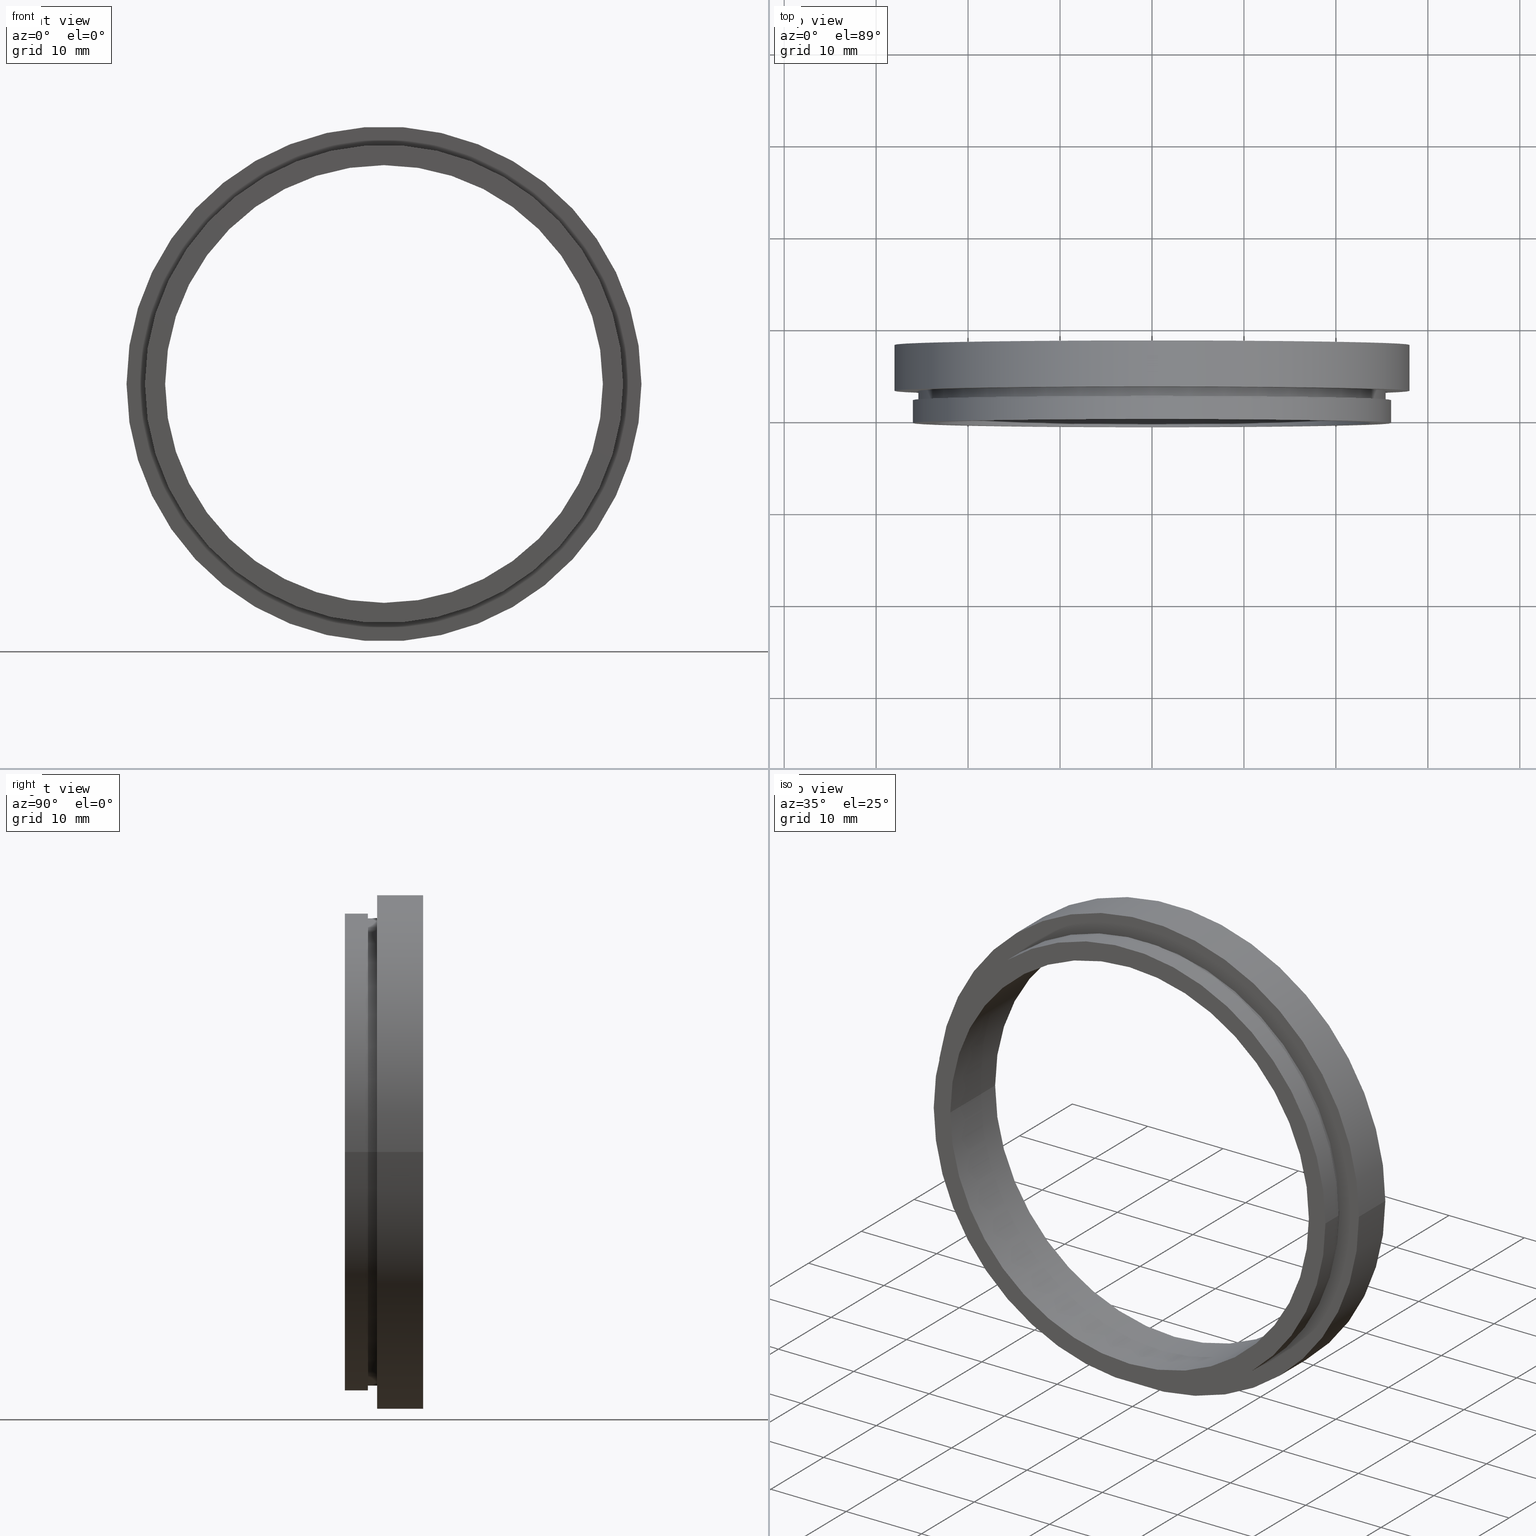
[diagram: canonical four-view strip — front | top / right | iso, engineering-drawing reading convention]
A machine part, canonical four-view strip (front | top / right | iso — engineering-drawing reading convention). The complete STEP part file that produces these views, byte-faithful:
ISO-10303-21;
HEADER;
FILE_DESCRIPTION (( 'STEP AP214' ),
    '1' );
FILE_NAME ('504093.STEP',
    '2019-10-09T01:35:31',
    ( '' ),
    ( '' ),
    'SwSTEP 2.0',
    'SolidWorks 2016',
    '' );
FILE_SCHEMA (( 'AUTOMOTIVE_DESIGN' ));
ENDSEC;

DATA;
#1 = DIRECTION ( 'NONE',  ( -1.000000000000000000, -1.167602339599774200E-016, 0.0000000000000000000 ) ) ;
#2 = CYLINDRICAL_SURFACE ( 'NONE', #31, 25.99999999999999600 ) ;
#3 = PRODUCT_DEFINITION_SHAPE ( 'NONE', 'NONE',  #267 ) ;
#4 = EDGE_CURVE ( 'NONE', #302, #423, #382, .T. ) ;
#5 = APPLICATION_CONTEXT ( 'automotive_design' ) ;
#6 =( NAMED_UNIT ( * ) PLANE_ANGLE_UNIT ( ) SI_UNIT ( $, .RADIAN. ) );
#7 = UNCERTAINTY_MEASURE_WITH_UNIT (LENGTH_MEASURE( 1.000000000000000100E-005 ), #371, 'distance_accuracy_value', 'NONE');
#8 = ORIENTED_EDGE ( 'NONE', *, *, #107, .T. ) ;
#9 = ORIENTED_EDGE ( 'NONE', *, *, #33, .T. ) ;
#10 =( NAMED_UNIT ( * ) PLANE_ANGLE_UNIT ( ) SI_UNIT ( $, .RADIAN. ) );
#11 = CARTESIAN_POINT ( 'NONE',  ( -28.00000000000000700, 2.954535588880331100, 0.0000000000000000000 ) ) ;
#12 =( NAMED_UNIT ( * ) SI_UNIT ( $, .STERADIAN. ) SOLID_ANGLE_UNIT ( ) );
#13 = CYLINDRICAL_SURFACE ( 'NONE', #82, 28.00000000000000400 ) ;
#14 =( LENGTH_UNIT ( ) NAMED_UNIT ( * ) SI_UNIT ( .MILLI., .METRE. ) );
#15 = EDGE_LOOP ( 'NONE', ( #321, #150, #397, #377 ) ) ;
#16 =( GEOMETRIC_REPRESENTATION_CONTEXT ( 3 ) GLOBAL_UNCERTAINTY_ASSIGNED_CONTEXT ( ( #7 ) ) GLOBAL_UNIT_ASSIGNED_CONTEXT ( ( #371, #374, #12 ) ) REPRESENTATION_CONTEXT ( 'NONE', 'WORKASPACE' ) );
#17 = DIRECTION ( 'NONE',  ( 0.0000000000000000000, 0.0000000000000000000, 1.000000000000000000 ) ) ;
#18 = CIRCLE ( 'NONE', #228, 23.79999999999999700 ) ;
#19 = CARTESIAN_POINT ( 'NONE',  ( 26.00000000000000000, -0.5454644111196653700, 3.184081677783117800E-015 ) ) ;
#20 = CARTESIAN_POINT ( 'NONE',  ( -25.39999999999999900, 2.954535588880331500, 0.0000000000000000000 ) ) ;
#21 = AXIS2_PLACEMENT_3D ( 'NONE', #89, #355, #155 ) ;
#22 = ORIENTED_EDGE ( 'NONE', *, *, #142, .T. ) ;
#23 = CARTESIAN_POINT ( 'NONE',  ( 2.134740942951285500E-015, -0.5454644111196684800, 0.0000000000000000000 ) ) ;
#24 = MECHANICAL_DESIGN_GEOMETRIC_PRESENTATION_REPRESENTATION (  '', ( #238 ), #121 ) ;
#25 = FACE_OUTER_BOUND ( 'NONE', #312, .T. ) ;
#26 = DIRECTION ( 'NONE',  ( -1.224646799147351000E-016, 1.000000000000000000, -0.0000000000000000000 ) ) ;
#27 = DIRECTION ( 'NONE',  ( -1.224646799147351000E-016, 1.000000000000000000, -0.0000000000000000000 ) ) ;
#28 = CIRCLE ( 'NONE', #203, 28.00000000000000000 ) ;
#29 = CARTESIAN_POINT ( 'NONE',  ( 25.39999999999999900, 16.88601823708208000, 3.110602869834276900E-015 ) ) ;
#30 = ORIENTED_EDGE ( 'NONE', *, *, #354, .T. ) ;
#31 = AXIS2_PLACEMENT_3D ( 'NONE', #425, #353, #258 ) ;
#32 = DIRECTION ( 'NONE',  ( -1.224646799147351000E-016, 1.000000000000000000, -0.0000000000000000000 ) ) ;
#33 = EDGE_CURVE ( 'NONE', #429, #118, #18, .T. ) ;
#34 = CIRCLE ( 'NONE', #422, 25.99999999999999600 ) ;
#35 = FILL_AREA_STYLE ('',( #409 ) ) ;
#36 = COLOUR_RGB ( '',1.000000000000000000, 1.000000000000000000, 1.000000000000000000 ) ;
#37 = DIRECTION ( 'NONE',  ( -1.000000000000000000, -1.365923996832131600E-016, 0.0000000000000000000 ) ) ;
#38 = SURFACE_SIDE_STYLE ('',( #256 ) ) ;
#39 =( LENGTH_UNIT ( ) NAMED_UNIT ( * ) SI_UNIT ( .MILLI., .METRE. ) );
#40 = STYLED_ITEM ( 'NONE', ( #288 ), #346 ) ;
#41 =( NAMED_UNIT ( * ) SI_UNIT ( $, .STERADIAN. ) SOLID_ANGLE_UNIT ( ) );
#42 = DIRECTION ( 'NONE',  ( 1.000000000000000000, 0.0000000000000000000, 0.0000000000000000000 ) ) ;
#43 = EDGE_LOOP ( 'NONE', ( #424, #182, #244, #254 ) ) ;
#44 = EDGE_LOOP ( 'NONE', ( #226, #394, #47, #357 ) ) ;
#45 = AXIS2_PLACEMENT_3D ( 'NONE', #392, #26, #290 ) ;
#46 = MECHANICAL_DESIGN_GEOMETRIC_PRESENTATION_REPRESENTATION (  '', ( #138 ), #57 ) ;
#47 = ORIENTED_EDGE ( 'NONE', *, *, #390, .T. ) ;
#48 = FILL_AREA_STYLE_COLOUR ( '', #359 ) ;
#49 = VERTEX_POINT ( 'NONE', #201 ) ;
#50 = VECTOR ( 'NONE', #189, 1000.000000000000000 ) ;
#51 = EDGE_CURVE ( 'NONE', #213, #140, #34, .T. ) ;
#52 =( NAMED_UNIT ( * ) PLANE_ANGLE_UNIT ( ) SI_UNIT ( $, .RADIAN. ) );
#53 = SURFACE_SIDE_STYLE ('',( #113 ) ) ;
#54 = FACE_OUTER_BOUND ( 'NONE', #165, .T. ) ;
#55 = EDGE_LOOP ( 'NONE', ( #368, #177 ) ) ;
#56 = UNCERTAINTY_MEASURE_WITH_UNIT (LENGTH_MEASURE( 1.000000000000000100E-005 ), #14, 'distance_accuracy_value', 'NONE');
#57 =( GEOMETRIC_REPRESENTATION_CONTEXT ( 3 ) GLOBAL_UNCERTAINTY_ASSIGNED_CONTEXT ( ( #404 ) ) GLOBAL_UNIT_ASSIGNED_CONTEXT ( ( #171, #131, #248 ) ) REPRESENTATION_CONTEXT ( 'NONE', 'WORKASPACE' ) );
#58 = DIRECTION ( 'NONE',  ( -1.000000000000000000, -1.229977254500362400E-016, 0.0000000000000000000 ) ) ;
#59 = ORIENTED_EDGE ( 'NONE', *, *, #4, .F. ) ;
#60 = ORIENTED_EDGE ( 'NONE', *, *, #390, .F. ) ;
#61 = AXIS2_PLACEMENT_3D ( 'NONE', #166, #403, #37 ) ;
#62 = CARTESIAN_POINT ( 'NONE',  ( 1.828579243164447600E-015, 1.954535588880333700, 0.0000000000000000000 ) ) ;
#63 = CARTESIAN_POINT ( 'NONE',  ( -28.00000000000000000, 7.954535588880330200, 0.0000000000000000000 ) ) ;
#64 = CARTESIAN_POINT ( 'NONE',  ( -25.99999999999999600, 16.88601823708207300, 0.0000000000000000000 ) ) ;
#65 = ORIENTED_EDGE ( 'NONE', *, *, #128, .F. ) ;
#66 = FILL_AREA_STYLE ('',( #405 ) ) ;
#67 = DIRECTION ( 'NONE',  ( -1.000000000000000000, -1.457750820148577400E-016, 0.0000000000000000000 ) ) ;
#68 = EDGE_CURVE ( 'NONE', #265, #302, #280, .T. ) ;
#69 = VECTOR ( 'NONE', #168, 1000.000000000000000 ) ;
#70 = DIRECTION ( 'NONE',  ( -1.224646799147351000E-016, 1.000000000000000000, -0.0000000000000000000 ) ) ;
#71 = ADVANCED_FACE ( 'NONE', ( #237, #434 ), #239, .F. ) ;
#72 = CARTESIAN_POINT ( 'NONE',  ( 23.80000000000000100, 7.954535588880337300, 2.914659381970700800E-015 ) ) ;
#73 = VECTOR ( 'NONE', #125, 1000.000000000000000 ) ;
#74 = AXIS2_PLACEMENT_3D ( 'NONE', #236, #32, #296 ) ;
#75 = ADVANCED_FACE ( 'NONE', ( #331 ), #307, .T. ) ;
#76 = EDGE_CURVE ( 'NONE', #413, #92, #327, .T. ) ;
#77 = LINE ( 'NONE', #163, #69 ) ;
#78 = ADVANCED_BREP_SHAPE_REPRESENTATION ( '504093', ( #133, #334 ), #249 ) ;
#79 = DIRECTION ( 'NONE',  ( 1.000000000000000000, 1.224646799147351000E-016, 0.0000000000000000000 ) ) ;
#80 = VERTEX_POINT ( 'NONE', #72 ) ;
#81 = SURFACE_STYLE_FILL_AREA ( #183 ) ;
#82 = AXIS2_PLACEMENT_3D ( 'NONE', #99, #303, #95 ) ;
#83 = ORIENTED_EDGE ( 'NONE', *, *, #408, .F. ) ;
#84 = CARTESIAN_POINT ( 'NONE',  ( -23.80000000000000100, 7.954535588880330200, 0.0000000000000000000 ) ) ;
#85 =( NAMED_UNIT ( * ) SI_UNIT ( $, .STERADIAN. ) SOLID_ANGLE_UNIT ( ) );
#86 = PLANE ( 'NONE',  #21 ) ;
#87 = ORIENTED_EDGE ( 'NONE', *, *, #231, .F. ) ;
#88 = CARTESIAN_POINT ( 'NONE',  ( 1.828579243164447600E-015, 1.954535588880333700, 0.0000000000000000000 ) ) ;
#89 = CARTESIAN_POINT ( 'NONE',  ( 23.80000000000000100, -0.5454644111196634800, 0.0000000000000000000 ) ) ;
#90 = DIRECTION ( 'NONE',  ( -1.000000000000000000, -1.365923996832131600E-016, 0.0000000000000000000 ) ) ;
#91 = EDGE_CURVE ( 'NONE', #413, #289, #243, .T. ) ;
#92 = VERTEX_POINT ( 'NONE', #11 ) ;
#93 = FACE_OUTER_BOUND ( 'NONE', #217, .T. ) ;
#94 = EDGE_CURVE ( 'NONE', #336, #213, #122, .T. ) ;
#95 = DIRECTION ( 'NONE',  ( -1.000000000000000000, -1.239088197126290600E-016, 0.0000000000000000000 ) ) ;
#96 = ORIENTED_EDGE ( 'NONE', *, *, #128, .T. ) ;
#97 = EDGE_LOOP ( 'NONE', ( #96, #431 ) ) ;
#98 =( NAMED_UNIT ( * ) SI_UNIT ( $, .STERADIAN. ) SOLID_ANGLE_UNIT ( ) );
#99 = CARTESIAN_POINT ( 'NONE',  ( 0.0000000000000000000, 16.88601823708207700, 0.0000000000000000000 ) ) ;
#100 = DIRECTION ( 'NONE',  ( -1.000000000000000000, -1.334402673828313300E-016, 0.0000000000000000000 ) ) ;
#101 = COLOUR_RGB ( '',1.000000000000000000, 1.000000000000000000, 1.000000000000000000 ) ;
#102 = SURFACE_SIDE_STYLE ('',( #420 ) ) ;
#103 = PRESENTATION_LAYER_ASSIGNMENT (  '', '', ( #40 ) ) ;
#104 = DIRECTION ( 'NONE',  ( -1.224646799147351000E-016, 1.000000000000000000, -0.0000000000000000000 ) ) ;
#105 = ORIENTED_EDGE ( 'NONE', *, *, #91, .T. ) ;
#106 = ADVANCED_FACE ( 'NONE', ( #54 ), #211, .F. ) ;
#107 = EDGE_CURVE ( 'NONE', #118, #429, #386, .T. ) ;
#108 = ADVANCED_FACE ( 'NONE', ( #221 ), #426, .T. ) ;
#109 =( GEOMETRIC_REPRESENTATION_CONTEXT ( 3 ) GLOBAL_UNCERTAINTY_ASSIGNED_CONTEXT ( ( #253 ) ) GLOBAL_UNIT_ASSIGNED_CONTEXT ( ( #235, #10, #98 ) ) REPRESENTATION_CONTEXT ( 'NONE', 'WORKASPACE' ) );
#110 = DIRECTION ( 'NONE',  ( -1.224646799147351000E-016, 1.000000000000000000, -0.0000000000000000000 ) ) ;
#111 = EDGE_CURVE ( 'NONE', #49, #423, #332, .T. ) ;
#112 = EDGE_LOOP ( 'NONE', ( #309, #30 ) ) ;
#113 = SURFACE_STYLE_FILL_AREA ( #229 ) ;
#114 = SURFACE_SIDE_STYLE ('',( #81 ) ) ;
#115 = VECTOR ( 'NONE', #127, 1000.000000000000000 ) ;
#116 = AXIS2_PLACEMENT_3D ( 'NONE', #318, #314, #181 ) ;
#117 = CARTESIAN_POINT ( 'NONE',  ( 23.80000000000000100, -0.5454644111196655900, 2.914659381970700800E-015 ) ) ;
#118 = VERTEX_POINT ( 'NONE', #117 ) ;
#119 = DIRECTION ( 'NONE',  ( -1.000000000000000000, -1.239088197126290600E-016, 0.0000000000000000000 ) ) ;
#120 = FACE_OUTER_BOUND ( 'NONE', #15, .T. ) ;
#121 =( GEOMETRIC_REPRESENTATION_CONTEXT ( 3 ) GLOBAL_UNCERTAINTY_ASSIGNED_CONTEXT ( ( #56 ) ) GLOBAL_UNIT_ASSIGNED_CONTEXT ( ( #14, #6, #246 ) ) REPRESENTATION_CONTEXT ( 'NONE', 'WORKASPACE' ) );
#122 = LINE ( 'NONE', #410, #317 ) ;
#123 = ORIENTED_EDGE ( 'NONE', *, *, #162, .F. ) ;
#124 = MECHANICAL_DESIGN_GEOMETRIC_PRESENTATION_REPRESENTATION (  '', ( #160 ), #16 ) ;
#125 = DIRECTION ( 'NONE',  ( -1.224646799147351000E-016, 1.000000000000000000, -0.0000000000000000000 ) ) ;
#126 = VERTEX_POINT ( 'NONE', #63 ) ;
#127 = DIRECTION ( 'NONE',  ( -1.224646799147351000E-016, 1.000000000000000000, -0.0000000000000000000 ) ) ;
#128 = EDGE_CURVE ( 'NONE', #140, #213, #141, .T. ) ;
#129 = DIRECTION ( 'NONE',  ( -1.000000000000000000, -1.457750820148577400E-016, 0.0000000000000000000 ) ) ;
#130 = CARTESIAN_POINT ( 'NONE',  ( 25.39999999999999900, 2.954535588880337300, 0.0000000000000000000 ) ) ;
#131 =( NAMED_UNIT ( * ) PLANE_ANGLE_UNIT ( ) SI_UNIT ( $, .RADIAN. ) );
#132 = DIRECTION ( 'NONE',  ( -1.224646799147351000E-016, 1.000000000000000000, -0.0000000000000000000 ) ) ;
#133 = MANIFOLD_SOLID_BREP ( '��ת1', #313 ) ;
#134 = CARTESIAN_POINT ( 'NONE',  ( 25.39999999999999900, 2.954535588880337700, 3.110602869834276900E-015 ) ) ;
#135 = CARTESIAN_POINT ( 'NONE',  ( 0.0000000000000000000, 16.88601823708207700, 0.0000000000000000000 ) ) ;
#136 = PRESENTATION_STYLE_ASSIGNMENT (( #401 ) ) ;
#137 = ADVANCED_FACE ( 'NONE', ( #93 ), #180, .T. ) ;
#138 = STYLED_ITEM ( 'NONE', ( #202 ), #75 ) ;
#139 = ORIENTED_EDGE ( 'NONE', *, *, #223, .T. ) ;
#140 = VERTEX_POINT ( 'NONE', #358 ) ;
#141 = CIRCLE ( 'NONE', #259, 25.99999999999999600 ) ;
#142 = EDGE_CURVE ( 'NONE', #265, #49, #427, .T. ) ;
#143 = ADVANCED_FACE ( 'NONE', ( #269, #185 ), #86, .F. ) ;
#144 = CIRCLE ( 'NONE', #330, 28.00000000000000700 ) ;
#145 = VECTOR ( 'NONE', #279, 1000.000000000000000 ) ;
#146 = ORIENTED_EDGE ( 'NONE', *, *, #107, .F. ) ;
#147 = AXIS2_PLACEMENT_3D ( 'NONE', #362, #433, #100 ) ;
#148 = LINE ( 'NONE', #64, #157 ) ;
#149 = EDGE_CURVE ( 'NONE', #212, #80, #263, .T. ) ;
#150 = ORIENTED_EDGE ( 'NONE', *, *, #33, .F. ) ;
#151 = DIRECTION ( 'NONE',  ( -1.000000000000000000, -1.457750820148577400E-016, 0.0000000000000000000 ) ) ;
#152 = PRESENTATION_STYLE_ASSIGNMENT (( #222 ) ) ;
#153 = PRESENTATION_LAYER_ASSIGNMENT (  '', '', ( #160 ) ) ;
#154 = DIRECTION ( 'NONE',  ( -1.224646799147351000E-016, 1.000000000000000000, -0.0000000000000000000 ) ) ;
#155 = DIRECTION ( 'NONE',  ( -1.000000000000000000, -1.224646799147351000E-016, 0.0000000000000000000 ) ) ;
#156 = ORIENTED_EDGE ( 'NONE', *, *, #94, .T. ) ;
#157 = VECTOR ( 'NONE', #206, 1000.000000000000000 ) ;
#158 = DIRECTION ( 'NONE',  ( -1.224646799147351000E-016, 1.000000000000000000, -0.0000000000000000000 ) ) ;
#159 = ORIENTED_EDGE ( 'NONE', *, *, #187, .F. ) ;
#160 = STYLED_ITEM ( 'NONE', ( #406 ), #106 ) ;
#161 = FACE_OUTER_BOUND ( 'NONE', #97, .T. ) ;
#162 = EDGE_CURVE ( 'NONE', #126, #289, #174, .T. ) ;
#163 = CARTESIAN_POINT ( 'NONE',  ( 23.80000000000000100, 16.88601823708208000, 2.914659381970700800E-015 ) ) ;
#164 = CARTESIAN_POINT ( 'NONE',  ( 23.80000000000000100, 7.954535588880337300, 0.0000000000000000000 ) ) ;
#165 = EDGE_LOOP ( 'NONE', ( #146, #417, #139, #285 ) ) ;
#166 = CARTESIAN_POINT ( 'NONE',  ( 0.0000000000000000000, 16.88601823708207700, 0.0000000000000000000 ) ) ;
#167 = SURFACE_STYLE_USAGE ( .BOTH. , #335 ) ;
#168 = DIRECTION ( 'NONE',  ( -1.224646799147351000E-016, 1.000000000000000000, -0.0000000000000000000 ) ) ;
#169 = FILL_AREA_STYLE ('',( #204 ) ) ;
#170 = DIRECTION ( 'NONE',  ( -1.000000000000000000, -1.209302423156908900E-016, 0.0000000000000000000 ) ) ;
#171 =( LENGTH_UNIT ( ) NAMED_UNIT ( * ) SI_UNIT ( .MILLI., .METRE. ) );
#172 = EDGE_CURVE ( 'NONE', #92, #413, #144, .T. ) ;
#173 = ORIENTED_EDGE ( 'NONE', *, *, #223, .F. ) ;
#174 = CIRCLE ( 'NONE', #45, 28.00000000000000000 ) ;
#175 = AXIS2_PLACEMENT_3D ( 'NONE', #23, #388, #387 ) ;
#176 = ORIENTED_EDGE ( 'NONE', *, *, #381, .F. ) ;
#177 = ORIENTED_EDGE ( 'NONE', *, *, #76, .F. ) ;
#178 = DIRECTION ( 'NONE',  ( -1.000000000000000000, -1.457750820148577400E-016, 0.0000000000000000000 ) ) ;
#179 = AXIS2_PLACEMENT_3D ( 'NONE', #286, #419, #79 ) ;
#180 = CYLINDRICAL_SURFACE ( 'NONE', #293, 25.39999999999999900 ) ;
#181 = DIRECTION ( 'NONE',  ( -1.000000000000000000, -1.195183497228115300E-016, 0.0000000000000000000 ) ) ;
#182 = ORIENTED_EDGE ( 'NONE', *, *, #396, .T. ) ;
#183 = FILL_AREA_STYLE ('',( #48 ) ) ;
#184 = MECHANICAL_DESIGN_GEOMETRIC_PRESENTATION_REPRESENTATION (  '', ( #40 ), #109 ) ;
#185 = FACE_BOUND ( 'NONE', #389, .T. ) ;
#186 = PRODUCT_DEFINITION_CONTEXT ( 'detailed design', #378, 'design' ) ;
#187 = EDGE_CURVE ( 'NONE', #208, #336, #350, .T. ) ;
#188 = ORIENTED_EDGE ( 'NONE', *, *, #111, .T. ) ;
#189 = DIRECTION ( 'NONE',  ( -1.224646799147351000E-016, 1.000000000000000000, -0.0000000000000000000 ) ) ;
#190 = ORIENTED_EDGE ( 'NONE', *, *, #381, .T. ) ;
#191 = CARTESIAN_POINT ( 'NONE',  ( 1.093791163676037000E-015, 7.954535588880333700, 0.0000000000000000000 ) ) ;
#192 = PRESENTATION_STYLE_ASSIGNMENT (( #292 ) ) ;
#193 = VECTOR ( 'NONE', #110, 1000.000000000000000 ) ;
#194 = SURFACE_SIDE_STYLE ('',( #380 ) ) ;
#195 = ORIENTED_EDGE ( 'NONE', *, *, #172, .T. ) ;
#196 = AXIS2_PLACEMENT_3D ( 'NONE', #341, #278, #67 ) ;
#197 = DIRECTION ( 'NONE',  ( 1.224646799147351000E-016, -1.000000000000000000, 0.0000000000000000000 ) ) ;
#198 = CIRCLE ( 'NONE', #207, 25.99999999999999600 ) ;
#199 = DIRECTION ( 'NONE',  ( -1.224646799147351000E-016, 1.000000000000000000, -0.0000000000000000000 ) ) ;
#200 = PLANE ( 'NONE',  #272 ) ;
#201 = CARTESIAN_POINT ( 'NONE',  ( 25.39999999999999900, 1.954535588880336600, 3.110602869834276900E-015 ) ) ;
#202 = PRESENTATION_STYLE_ASSIGNMENT (( #407 ) ) ;
#203 = AXIS2_PLACEMENT_3D ( 'NONE', #370, #70, #333 ) ;
#204 = FILL_AREA_STYLE_COLOUR ( '', #284 ) ;
#205 = UNCERTAINTY_MEASURE_WITH_UNIT (LENGTH_MEASURE( 1.000000000000000100E-005 ), #260, 'distance_accuracy_value', 'NONE');
#206 = DIRECTION ( 'NONE',  ( -1.224646799147351000E-016, 1.000000000000000000, -0.0000000000000000000 ) ) ;
#207 = AXIS2_PLACEMENT_3D ( 'NONE', #399, #373, #170 ) ;
#208 = VERTEX_POINT ( 'NONE', #257 ) ;
#209 = DIRECTION ( 'NONE',  ( -1.224646799147351000E-016, 1.000000000000000000, -0.0000000000000000000 ) ) ;
#210 = ADVANCED_FACE ( 'NONE', ( #241 ), #2, .T. ) ;
#211 = CYLINDRICAL_SURFACE ( 'NONE', #196, 23.80000000000000100 ) ;
#212 = VERTEX_POINT ( 'NONE', #84 ) ;
#213 = VERTEX_POINT ( 'NONE', #385 ) ;
#214 = FILL_AREA_STYLE_COLOUR ( '', #101 ) ;
#215 = CIRCLE ( 'NONE', #352, 23.80000000000000100 ) ;
#216 = CARTESIAN_POINT ( 'NONE',  ( -23.80000000000000100, 16.88601823708207300, 0.0000000000000000000 ) ) ;
#217 = EDGE_LOOP ( 'NONE', ( #22, #188, #59, #351 ) ) ;
#218 = PLANE ( 'NONE',  #179 ) ;
#219 = SHAPE_DEFINITION_REPRESENTATION ( #3, #78 ) ;
#220 = AXIS2_PLACEMENT_3D ( 'NONE', #88, #233, #325 ) ;
#221 = FACE_OUTER_BOUND ( 'NONE', #295, .T. ) ;
#222 = SURFACE_STYLE_USAGE ( .BOTH. , #114 ) ;
#223 = EDGE_CURVE ( 'NONE', #80, #212, #215, .T. ) ;
#224 =( LENGTH_UNIT ( ) NAMED_UNIT ( * ) SI_UNIT ( .MILLI., .METRE. ) );
#225 = ORIENTED_EDGE ( 'NONE', *, *, #187, .T. ) ;
#226 = ORIENTED_EDGE ( 'NONE', *, *, #91, .F. ) ;
#227 = CARTESIAN_POINT ( 'NONE',  ( 1.828579243164447600E-015, 1.954535588880333700, 0.0000000000000000000 ) ) ;
#228 = AXIS2_PLACEMENT_3D ( 'NONE', #365, #199, #400 ) ;
#229 = FILL_AREA_STYLE ('',( #430 ) ) ;
#230 = CYLINDRICAL_SURFACE ( 'NONE', #360, 23.80000000000000100 ) ;
#231 = EDGE_CURVE ( 'NONE', #423, #302, #347, .T. ) ;
#232 = COLOUR_RGB ( '',1.000000000000000000, 1.000000000000000000, 1.000000000000000000 ) ;
#233 = DIRECTION ( 'NONE',  ( -1.224646799147351000E-016, 1.000000000000000000, -0.0000000000000000000 ) ) ;
#234 = SURFACE_STYLE_USAGE ( .BOTH. , #194 ) ;
#235 =( LENGTH_UNIT ( ) NAMED_UNIT ( * ) SI_UNIT ( .MILLI., .METRE. ) );
#236 = CARTESIAN_POINT ( 'NONE',  ( 1.706114563249712100E-015, 2.954535588880334600, 0.0000000000000000000 ) ) ;
#237 = FACE_BOUND ( 'NONE', #329, .T. ) ;
#238 = STYLED_ITEM ( 'NONE', ( #136 ), #78 ) ;
#239 = PLANE ( 'NONE',  #252 ) ;
#240 = CARTESIAN_POINT ( 'NONE',  ( -23.79999999999999400, -0.5454644111196714800, 0.0000000000000000000 ) ) ;
#241 = FACE_OUTER_BOUND ( 'NONE', #43, .T. ) ;
#242 = CARTESIAN_POINT ( 'NONE',  ( 2.134740942951285500E-015, -0.5454644111196684800, 0.0000000000000000000 ) ) ;
#243 = LINE ( 'NONE', #338, #145 ) ;
#244 = ORIENTED_EDGE ( 'NONE', *, *, #408, .T. ) ;
#245 = CARTESIAN_POINT ( 'NONE',  ( 1.706114563249712100E-015, 2.954535588880334600, 0.0000000000000000000 ) ) ;
#246 =( NAMED_UNIT ( * ) SI_UNIT ( $, .STERADIAN. ) SOLID_ANGLE_UNIT ( ) );
#247 = ADVANCED_FACE ( 'NONE', ( #251, #161 ), #218, .F. ) ;
#248 =( NAMED_UNIT ( * ) SI_UNIT ( $, .STERADIAN. ) SOLID_ANGLE_UNIT ( ) );
#249 =( GEOMETRIC_REPRESENTATION_CONTEXT ( 3 ) GLOBAL_UNCERTAINTY_ASSIGNED_CONTEXT ( ( #264 ) ) GLOBAL_UNIT_ASSIGNED_CONTEXT ( ( #39, #308, #41 ) ) REPRESENTATION_CONTEXT ( 'NONE', 'WORKASPACE' ) );
#250 = EDGE_LOOP ( 'NONE', ( #225, #156, #65, #83 ) ) ;
#251 = FACE_BOUND ( 'NONE', #322, .T. ) ;
#252 = AXIS2_PLACEMENT_3D ( 'NONE', #164, #197, #268 ) ;
#253 = UNCERTAINTY_MEASURE_WITH_UNIT (LENGTH_MEASURE( 1.000000000000000100E-005 ), #235, 'distance_accuracy_value', 'NONE');
#254 = ORIENTED_EDGE ( 'NONE', *, *, #51, .F. ) ;
#255 = AXIS2_PLACEMENT_3D ( 'NONE', #135, #305, #375 ) ;
#256 = SURFACE_STYLE_FILL_AREA ( #169 ) ;
#257 = CARTESIAN_POINT ( 'NONE',  ( -25.99999999999999300, -0.5454644111196717000, 0.0000000000000000000 ) ) ;
#258 = DIRECTION ( 'NONE',  ( -1.000000000000000000, -1.334402673828313300E-016, 0.0000000000000000000 ) ) ;
#259 = AXIS2_PLACEMENT_3D ( 'NONE', #227, #328, #428 ) ;
#260 =( LENGTH_UNIT ( ) NAMED_UNIT ( * ) SI_UNIT ( .MILLI., .METRE. ) );
#261 = DIRECTION ( 'NONE',  ( -1.224646799147351000E-016, 1.000000000000000000, -0.0000000000000000000 ) ) ;
#262 = PRODUCT_DEFINITION_FORMATION_WITH_SPECIFIED_SOURCE ( '�κ�', '', #349, .NOT_KNOWN. ) ;
#263 = CIRCLE ( 'NONE', #282, 23.80000000000000100 ) ;
#264 = UNCERTAINTY_MEASURE_WITH_UNIT (LENGTH_MEASURE( 1.000000000000000100E-005 ), #39, 'distance_accuracy_value', 'NONE');
#265 = VERTEX_POINT ( 'NONE', #418 ) ;
#266 = CYLINDRICAL_SURFACE ( 'NONE', #61, 25.39999999999999900 ) ;
#267 = PRODUCT_DEFINITION ( 'δ֪', '', #262, #186 ) ;
#268 = DIRECTION ( 'NONE',  ( 1.000000000000000000, 1.224646799147351000E-016, 0.0000000000000000000 ) ) ;
#269 = FACE_OUTER_BOUND ( 'NONE', #271, .T. ) ;
#270 = APPLICATION_PROTOCOL_DEFINITION ( 'draft international standard', 'automotive_design', 1998, #5 ) ;
#271 = EDGE_LOOP ( 'NONE', ( #159, #301 ) ) ;
#272 = AXIS2_PLACEMENT_3D ( 'NONE', #130, #273, #304 ) ;
#273 = DIRECTION ( 'NONE',  ( -1.224646799147351000E-016, 1.000000000000000000, 0.0000000000000000000 ) ) ;
#274 = ORIENTED_EDGE ( 'NONE', *, *, #111, .F. ) ;
#275 = DIRECTION ( 'NONE',  ( -1.224646799147351000E-016, 1.000000000000000000, -0.0000000000000000000 ) ) ;
#276 = STYLED_ITEM ( 'NONE', ( #152 ), #210 ) ;
#277 = LINE ( 'NONE', #340, #115 ) ;
#278 = DIRECTION ( 'NONE',  ( -1.224646799147351000E-016, 1.000000000000000000, -0.0000000000000000000 ) ) ;
#279 = DIRECTION ( 'NONE',  ( -1.224646799147351000E-016, 1.000000000000000000, -0.0000000000000000000 ) ) ;
#280 = LINE ( 'NONE', #299, #73 ) ;
#281 = PRODUCT_RELATED_PRODUCT_CATEGORY ( 'part', '', ( #349 ) ) ;
#282 = AXIS2_PLACEMENT_3D ( 'NONE', #191, #27, #151 ) ;
#283 = APPLICATION_PROTOCOL_DEFINITION ( 'draft international standard', 'automotive_design', 1998, #378 ) ;
#284 = COLOUR_RGB ( '',1.000000000000000000, 1.000000000000000000, 1.000000000000000000 ) ;
#285 = ORIENTED_EDGE ( 'NONE', *, *, #287, .F. ) ;
#286 = CARTESIAN_POINT ( 'NONE',  ( 25.39999999999999900, 1.954535588880337100, 0.0000000000000000000 ) ) ;
#287 = EDGE_CURVE ( 'NONE', #429, #212, #298, .T. ) ;
#288 = PRESENTATION_STYLE_ASSIGNMENT (( #234 ) ) ;
#289 = VERTEX_POINT ( 'NONE', #316 ) ;
#290 = DIRECTION ( 'NONE',  ( -1.000000000000000000, -1.239088197126290800E-016, 0.0000000000000000000 ) ) ;
#291 =( GEOMETRIC_REPRESENTATION_CONTEXT ( 3 ) GLOBAL_UNCERTAINTY_ASSIGNED_CONTEXT ( ( #205 ) ) GLOBAL_UNIT_ASSIGNED_CONTEXT ( ( #260, #52, #85 ) ) REPRESENTATION_CONTEXT ( 'NONE', 'WORKASPACE' ) );
#292 = SURFACE_STYLE_USAGE ( .BOTH. , #53 ) ;
#293 = AXIS2_PLACEMENT_3D ( 'NONE', #294, #395, #90 ) ;
#294 = CARTESIAN_POINT ( 'NONE',  ( 0.0000000000000000000, 16.88601823708207700, 0.0000000000000000000 ) ) ;
#295 = EDGE_LOOP ( 'NONE', ( #195, #105, #123, #60 ) ) ;
#296 = DIRECTION ( 'NONE',  ( -1.000000000000000000, -1.195183497228115300E-016, 0.0000000000000000000 ) ) ;
#297 = COLOUR_RGB ( '',1.000000000000000000, 1.000000000000000000, 1.000000000000000000 ) ;
#298 = LINE ( 'NONE', #216, #193 ) ;
#299 = CARTESIAN_POINT ( 'NONE',  ( -25.39999999999999900, 16.88601823708207300, 0.0000000000000000000 ) ) ;
#300 = AXIS2_PLACEMENT_3D ( 'NONE', #245, #132, #306 ) ;
#301 = ORIENTED_EDGE ( 'NONE', *, *, #396, .F. ) ;
#302 = VERTEX_POINT ( 'NONE', #20 ) ;
#303 = DIRECTION ( 'NONE',  ( -1.224646799147351000E-016, 1.000000000000000000, -0.0000000000000000000 ) ) ;
#304 = DIRECTION ( 'NONE',  ( -1.000000000000000000, -1.224646799147351000E-016, 0.0000000000000000000 ) ) ;
#305 = DIRECTION ( 'NONE',  ( -1.224646799147351000E-016, 1.000000000000000000, -0.0000000000000000000 ) ) ;
#306 = DIRECTION ( 'NONE',  ( -1.000000000000000000, -1.239088197126290600E-016, 0.0000000000000000000 ) ) ;
#307 = CYLINDRICAL_SURFACE ( 'NONE', #147, 25.99999999999999600 ) ;
#308 =( NAMED_UNIT ( * ) PLANE_ANGLE_UNIT ( ) SI_UNIT ( $, .RADIAN. ) );
#309 = ORIENTED_EDGE ( 'NONE', *, *, #162, .T. ) ;
#310 = CARTESIAN_POINT ( 'NONE',  ( 0.0000000000000000000, 16.88601823708207700, 0.0000000000000000000 ) ) ;
#311 = MECHANICAL_DESIGN_GEOMETRIC_PRESENTATION_REPRESENTATION (  '', ( #363 ), #291 ) ;
#312 = EDGE_LOOP ( 'NONE', ( #274, #190, #348, #87 ) ) ;
#313 = CLOSED_SHELL ( 'NONE', ( #75, #137, #108, #106, #143, #346, #71, #376, #411, #414, #247, #210 ) ) ;
#314 = DIRECTION ( 'NONE',  ( -1.224646799147351000E-016, 1.000000000000000000, -0.0000000000000000000 ) ) ;
#315 = FACE_BOUND ( 'NONE', #344, .T. ) ;
#316 = CARTESIAN_POINT ( 'NONE',  ( 28.00000000000000000, 7.954535588880337300, 3.429011037612589300E-015 ) ) ;
#317 = VECTOR ( 'NONE', #209, 1000.000000000000000 ) ;
#318 = CARTESIAN_POINT ( 'NONE',  ( 1.706114563249712100E-015, 2.954535588880334600, 0.0000000000000000000 ) ) ;
#319 = PRESENTATION_LAYER_ASSIGNMENT (  '', '', ( #276 ) ) ;
#320 =( NAMED_UNIT ( * ) SI_UNIT ( $, .STERADIAN. ) SOLID_ANGLE_UNIT ( ) );
#321 = ORIENTED_EDGE ( 'NONE', *, *, #398, .F. ) ;
#322 = EDGE_LOOP ( 'NONE', ( #356, #176 ) ) ;
#323 =( GEOMETRIC_REPRESENTATION_CONTEXT ( 3 ) GLOBAL_UNCERTAINTY_ASSIGNED_CONTEXT ( ( #326 ) ) GLOBAL_UNIT_ASSIGNED_CONTEXT ( ( #224, #421, #320 ) ) REPRESENTATION_CONTEXT ( 'NONE', 'WORKASPACE' ) );
#324 = CARTESIAN_POINT ( 'NONE',  ( 1.706114563249712100E-015, 2.954535588880334600, 0.0000000000000000000 ) ) ;
#325 = DIRECTION ( 'NONE',  ( -1.000000000000000000, -1.195183497228115300E-016, 0.0000000000000000000 ) ) ;
#326 = UNCERTAINTY_MEASURE_WITH_UNIT (LENGTH_MEASURE( 1.000000000000000100E-005 ), #224, 'distance_accuracy_value', 'NONE');
#327 = CIRCLE ( 'NONE', #300, 28.00000000000000700 ) ;
#328 = DIRECTION ( 'NONE',  ( -1.224646799147351000E-016, 1.000000000000000000, -0.0000000000000000000 ) ) ;
#329 = EDGE_LOOP ( 'NONE', ( #337, #173 ) ) ;
#330 = AXIS2_PLACEMENT_3D ( 'NONE', #324, #154, #119 ) ;
#331 = FACE_OUTER_BOUND ( 'NONE', #250, .T. ) ;
#332 = LINE ( 'NONE', #29, #50 ) ;
#333 = DIRECTION ( 'NONE',  ( -1.000000000000000000, -1.239088197126290800E-016, 0.0000000000000000000 ) ) ;
#334 = AXIS2_PLACEMENT_3D ( 'NONE', #412, #17, #42 ) ;
#335 = SURFACE_SIDE_STYLE ('',( #393 ) ) ;
#336 = VERTEX_POINT ( 'NONE', #19 ) ;
#337 = ORIENTED_EDGE ( 'NONE', *, *, #149, .F. ) ;
#338 = CARTESIAN_POINT ( 'NONE',  ( 28.00000000000000400, 16.88601823708208000, 3.429011037612589700E-015 ) ) ;
#339 = MECHANICAL_DESIGN_GEOMETRIC_PRESENTATION_REPRESENTATION (  '', ( #276 ), #323 ) ;
#340 = CARTESIAN_POINT ( 'NONE',  ( -28.00000000000000400, 16.88601823708207300, 0.0000000000000000000 ) ) ;
#341 = CARTESIAN_POINT ( 'NONE',  ( 0.0000000000000000000, 16.88601823708207700, 0.0000000000000000000 ) ) ;
#342 = FACE_OUTER_BOUND ( 'NONE', #55, .T. ) ;
#343 = PRODUCT_CONTEXT ( 'NONE', #5, 'mechanical' ) ;
#344 = EDGE_LOOP ( 'NONE', ( #366, #391 ) ) ;
#345 = PRESENTATION_LAYER_ASSIGNMENT (  '', '', ( #238 ) ) ;
#346 = ADVANCED_FACE ( 'NONE', ( #120 ), #230, .F. ) ;
#347 = CIRCLE ( 'NONE', #116, 25.39999999999999900 ) ;
#348 = ORIENTED_EDGE ( 'NONE', *, *, #68, .T. ) ;
#349 = PRODUCT ( '504093', '504093', '', ( #343 ) ) ;
#350 = CIRCLE ( 'NONE', #175, 25.99999999999999600 ) ;
#351 = ORIENTED_EDGE ( 'NONE', *, *, #68, .F. ) ;
#352 = AXIS2_PLACEMENT_3D ( 'NONE', #383, #416, #178 ) ;
#353 = DIRECTION ( 'NONE',  ( -1.224646799147351000E-016, 1.000000000000000000, -0.0000000000000000000 ) ) ;
#354 = EDGE_CURVE ( 'NONE', #289, #126, #28, .T. ) ;
#355 = DIRECTION ( 'NONE',  ( -1.224646799147351000E-016, 1.000000000000000000, 0.0000000000000000000 ) ) ;
#356 = ORIENTED_EDGE ( 'NONE', *, *, #142, .F. ) ;
#357 = ORIENTED_EDGE ( 'NONE', *, *, #354, .F. ) ;
#358 = CARTESIAN_POINT ( 'NONE',  ( -25.99999999999999300, 1.954535588880330600, 0.0000000000000000000 ) ) ;
#359 = COLOUR_RGB ( '',1.000000000000000000, 1.000000000000000000, 1.000000000000000000 ) ;
#360 = AXIS2_PLACEMENT_3D ( 'NONE', #310, #275, #129 ) ;
#361 = FILL_AREA_STYLE ('',( #214 ) ) ;
#362 = CARTESIAN_POINT ( 'NONE',  ( 0.0000000000000000000, 16.88601823708207700, 0.0000000000000000000 ) ) ;
#363 = STYLED_ITEM ( 'NONE', ( #192 ), #133 ) ;
#364 = CARTESIAN_POINT ( 'NONE',  ( 28.00000000000001100, 2.954535588880338200, 3.429011037612590100E-015 ) ) ;
#365 = CARTESIAN_POINT ( 'NONE',  ( 2.134740942951285500E-015, -0.5454644111196684800, 0.0000000000000000000 ) ) ;
#366 = ORIENTED_EDGE ( 'NONE', *, *, #4, .T. ) ;
#367 = DIRECTION ( 'NONE',  ( -1.000000000000000000, -1.195183497228115300E-016, 0.0000000000000000000 ) ) ;
#368 = ORIENTED_EDGE ( 'NONE', *, *, #172, .F. ) ;
#369 = CARTESIAN_POINT ( 'NONE',  ( 1.828579243164447600E-015, 1.954535588880333700, 0.0000000000000000000 ) ) ;
#370 = CARTESIAN_POINT ( 'NONE',  ( 1.093791163676037000E-015, 7.954535588880333700, 0.0000000000000000000 ) ) ;
#371 =( LENGTH_UNIT ( ) NAMED_UNIT ( * ) SI_UNIT ( .MILLI., .METRE. ) );
#372 = CIRCLE ( 'NONE', #379, 25.39999999999999500 ) ;
#373 = DIRECTION ( 'NONE',  ( -1.224646799147351000E-016, 1.000000000000000000, -0.0000000000000000000 ) ) ;
#374 =( NAMED_UNIT ( * ) PLANE_ANGLE_UNIT ( ) SI_UNIT ( $, .RADIAN. ) );
#375 = DIRECTION ( 'NONE',  ( -1.000000000000000000, -1.239088197126290600E-016, 0.0000000000000000000 ) ) ;
#376 = ADVANCED_FACE ( 'NONE', ( #402 ), #13, .T. ) ;
#377 = ORIENTED_EDGE ( 'NONE', *, *, #149, .T. ) ;
#378 = APPLICATION_CONTEXT ( 'automotive_design' ) ;
#379 = AXIS2_PLACEMENT_3D ( 'NONE', #62, #104, #367 ) ;
#380 = SURFACE_STYLE_FILL_AREA ( #361 ) ;
#381 = EDGE_CURVE ( 'NONE', #49, #265, #372, .T. ) ;
#382 = CIRCLE ( 'NONE', #74, 25.39999999999999900 ) ;
#383 = CARTESIAN_POINT ( 'NONE',  ( 1.093791163676037000E-015, 7.954535588880333700, 0.0000000000000000000 ) ) ;
#384 = PRESENTATION_LAYER_ASSIGNMENT (  '', '', ( #363 ) ) ;
#385 = CARTESIAN_POINT ( 'NONE',  ( 26.00000000000000000, 1.954535588880336600, 3.184081677783117800E-015 ) ) ;
#386 = CIRCLE ( 'NONE', #432, 23.79999999999999700 ) ;
#387 = DIRECTION ( 'NONE',  ( -1.000000000000000000, -1.209302423156908900E-016, 0.0000000000000000000 ) ) ;
#388 = DIRECTION ( 'NONE',  ( -1.224646799147351000E-016, 1.000000000000000000, -0.0000000000000000000 ) ) ;
#389 = EDGE_LOOP ( 'NONE', ( #9, #8 ) ) ;
#390 = EDGE_CURVE ( 'NONE', #92, #126, #277, .T. ) ;
#391 = ORIENTED_EDGE ( 'NONE', *, *, #231, .T. ) ;
#392 = CARTESIAN_POINT ( 'NONE',  ( 1.093791163676037000E-015, 7.954535588880333700, 0.0000000000000000000 ) ) ;
#393 = SURFACE_STYLE_FILL_AREA ( #66 ) ;
#394 = ORIENTED_EDGE ( 'NONE', *, *, #76, .T. ) ;
#395 = DIRECTION ( 'NONE',  ( -1.224646799147351000E-016, 1.000000000000000000, -0.0000000000000000000 ) ) ;
#396 = EDGE_CURVE ( 'NONE', #336, #208, #198, .T. ) ;
#397 = ORIENTED_EDGE ( 'NONE', *, *, #287, .T. ) ;
#398 = EDGE_CURVE ( 'NONE', #118, #80, #77, .T. ) ;
#399 = CARTESIAN_POINT ( 'NONE',  ( 2.134740942951285500E-015, -0.5454644111196684800, 0.0000000000000000000 ) ) ;
#400 = DIRECTION ( 'NONE',  ( -1.000000000000000000, -1.229977254500362400E-016, 0.0000000000000000000 ) ) ;
#401 = SURFACE_STYLE_USAGE ( .BOTH. , #102 ) ;
#402 = FACE_OUTER_BOUND ( 'NONE', #44, .T. ) ;
#403 = DIRECTION ( 'NONE',  ( -1.224646799147351000E-016, 1.000000000000000000, -0.0000000000000000000 ) ) ;
#404 = UNCERTAINTY_MEASURE_WITH_UNIT (LENGTH_MEASURE( 1.000000000000000100E-005 ), #171, 'distance_accuracy_value', 'NONE');
#405 = FILL_AREA_STYLE_COLOUR ( '', #232 ) ;
#406 = PRESENTATION_STYLE_ASSIGNMENT (( #167 ) ) ;
#407 = SURFACE_STYLE_USAGE ( .BOTH. , #38 ) ;
#408 = EDGE_CURVE ( 'NONE', #208, #140, #148, .T. ) ;
#409 = FILL_AREA_STYLE_COLOUR ( '', #36 ) ;
#410 = CARTESIAN_POINT ( 'NONE',  ( 25.99999999999999600, 16.88601823708208000, 3.184081677783117800E-015 ) ) ;
#411 = ADVANCED_FACE ( 'NONE', ( #342, #315 ), #200, .F. ) ;
#412 = CARTESIAN_POINT ( 'NONE',  ( 0.0000000000000000000, 0.0000000000000000000, 0.0000000000000000000 ) ) ;
#413 = VERTEX_POINT ( 'NONE', #364 ) ;
#414 = ADVANCED_FACE ( 'NONE', ( #25 ), #266, .T. ) ;
#415 = PRESENTATION_LAYER_ASSIGNMENT (  '', '', ( #138 ) ) ;
#416 = DIRECTION ( 'NONE',  ( -1.224646799147351000E-016, 1.000000000000000000, -0.0000000000000000000 ) ) ;
#417 = ORIENTED_EDGE ( 'NONE', *, *, #398, .T. ) ;
#418 = CARTESIAN_POINT ( 'NONE',  ( -25.39999999999999100, 1.954535588880330600, 0.0000000000000000000 ) ) ;
#419 = DIRECTION ( 'NONE',  ( 1.224646799147351000E-016, -1.000000000000000000, 0.0000000000000000000 ) ) ;
#420 = SURFACE_STYLE_FILL_AREA ( #35 ) ;
#421 =( NAMED_UNIT ( * ) PLANE_ANGLE_UNIT ( ) SI_UNIT ( $, .RADIAN. ) );
#422 = AXIS2_PLACEMENT_3D ( 'NONE', #369, #158, #1 ) ;
#423 = VERTEX_POINT ( 'NONE', #134 ) ;
#424 = ORIENTED_EDGE ( 'NONE', *, *, #94, .F. ) ;
#425 = CARTESIAN_POINT ( 'NONE',  ( 0.0000000000000000000, 16.88601823708207700, 0.0000000000000000000 ) ) ;
#426 = CYLINDRICAL_SURFACE ( 'NONE', #255, 28.00000000000000400 ) ;
#427 = CIRCLE ( 'NONE', #220, 25.39999999999999500 ) ;
#428 = DIRECTION ( 'NONE',  ( -1.000000000000000000, -1.167602339599774200E-016, 0.0000000000000000000 ) ) ;
#429 = VERTEX_POINT ( 'NONE', #240 ) ;
#430 = FILL_AREA_STYLE_COLOUR ( '', #297 ) ;
#431 = ORIENTED_EDGE ( 'NONE', *, *, #51, .T. ) ;
#432 = AXIS2_PLACEMENT_3D ( 'NONE', #242, #261, #58 ) ;
#433 = DIRECTION ( 'NONE',  ( -1.224646799147351000E-016, 1.000000000000000000, -0.0000000000000000000 ) ) ;
#434 = FACE_OUTER_BOUND ( 'NONE', #112, .T. ) ;
ENDSEC;
END-ISO-10303-21;
